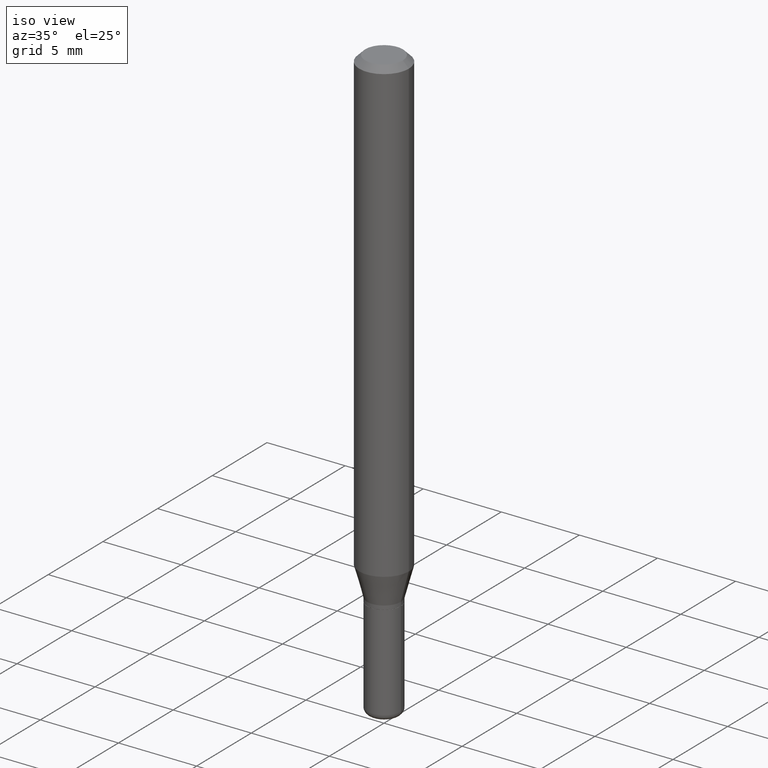
[diagram: clean part render]
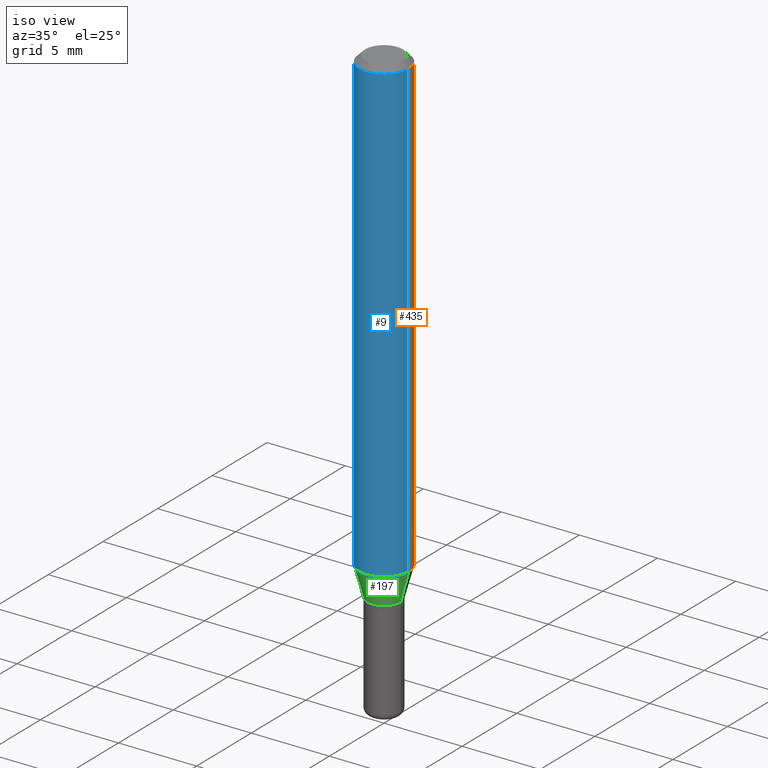
[diagram: same view with three faces highlighted in distinct colors, each labeled with its STEP entity id]
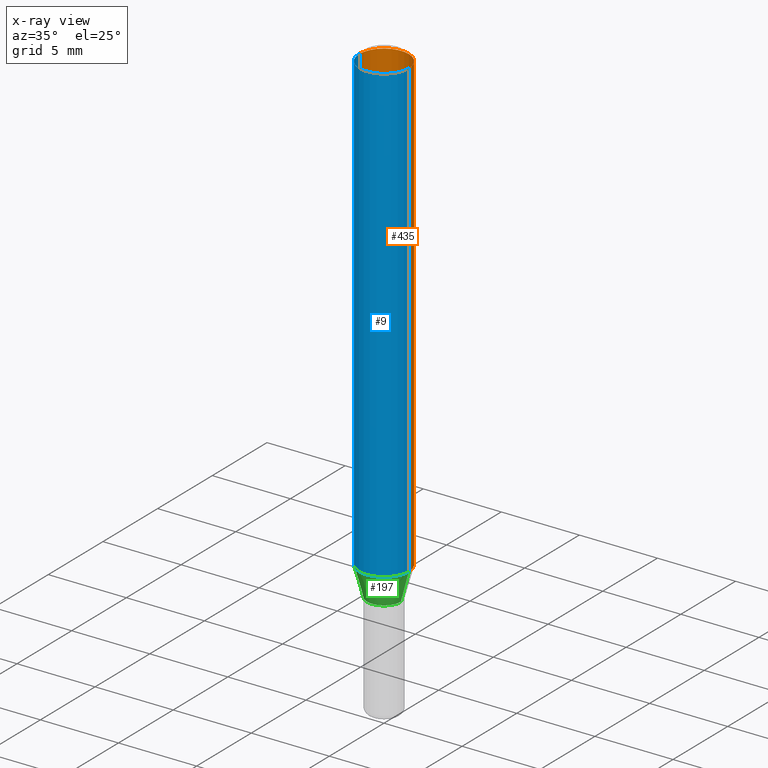
[diagram: x-ray of the same camera — body ghosted, the three highlighted faces saturated]
A machine part, iso view with three faces highlighted in distinct colors.
The next image is the same camera in x-ray (body ghosted, the three faces saturated) — at least one of them is partly hidden behind the body in this view.
Their STEP definitions:

[orange] entity #435 — the highlighted cylindrical surface (edge-blend (fillet) strip) has radius 1.5875 mm, axis along (-0, 0, 1).
#2 = ORIENTED_EDGE ( 'NONE', *, *, #174, .F. ) ;
#18 = EDGE_CURVE ( 'NONE', #262, #90, #392, .T. ) ;
#38 = EDGE_CURVE ( 'NONE', #90, #165, #416, .T. ) ;
#52 = EDGE_LOOP ( 'NONE', ( #120, #402, #2, #204 ) ) ;
#53 = CYLINDRICAL_SURFACE ( 'NONE', #233, 0.06250000000000000000 ) ;
#65 = CARTESIAN_POINT ( 'NONE',  ( 0.06250000000000000000, -4.888073874380378612E-16, -0.01499999999999970281 ) ) ;
#90 = VERTEX_POINT ( 'NONE', #504 ) ;
#91 = VECTOR ( 'NONE', #510, 39.37007874015748143 ) ;
#93 = DIRECTION ( 'NONE',  ( -2.445468806185136597E-29, 3.491481338843145583E-15, 1.000000000000000000 ) ) ;
#110 = CARTESIAN_POINT ( 'NONE',  ( 3.668203209277632395E-31, -5.237222008264614861E-17, -0.01499999999999970281 ) ) ;
#120 = ORIENTED_EDGE ( 'NONE', *, *, #18, .T. ) ;
#149 = DIRECTION ( 'NONE',  ( 1.000000000000000000, -6.982962677686266711E-15, 4.876176775795935793E-29 ) ) ;
#165 = VERTEX_POINT ( 'NONE', #318 ) ;
#174 = EDGE_CURVE ( 'NONE', #203, #165, #398, .T. ) ;
#177 = VECTOR ( 'NONE', #267, 39.37007874015748143 ) ;
#184 = DIRECTION ( 'NONE',  ( 1.000000000000000000, -6.982962677686266711E-15, 0.000000000000000000 ) ) ;
#194 = CARTESIAN_POINT ( 'NONE',  ( 0.06250000000000000000, -4.364351673553916694E-16, 3.047610484872459871E-30 ) ) ;
#203 = VERTEX_POINT ( 'NONE', #65 ) ;
#204 = ORIENTED_EDGE ( 'NONE', *, *, #431, .F. ) ;
#216 = DIRECTION ( 'NONE',  ( 1.000000000000000000, -6.982962677686262766E-15, 0.000000000000000000 ) ) ;
#233 = AXIS2_PLACEMENT_3D ( 'NONE', #456, #359, #149 ) ;
#262 = VERTEX_POINT ( 'NONE', #295 ) ;
#267 = DIRECTION ( 'NONE',  ( -2.445468806185136877E-29, 3.491481338843145188E-15, 1.000000000000000000 ) ) ;
#269 = DIRECTION ( 'NONE',  ( -2.445468806185136597E-29, 3.491481338843145583E-15, 1.000000000000000000 ) ) ;
#276 = LINE ( 'NONE', #194, #91 ) ;
#291 = CARTESIAN_POINT ( 'NONE',  ( 2.837621698978489098E-29, -4.051371738466460595E-15, -1.160358983848622572 ) ) ;
#295 = CARTESIAN_POINT ( 'NONE',  ( 0.06250000000000000000, -4.487806905821851475E-15, -1.160358983848622572 ) ) ;
#313 = AXIS2_PLACEMENT_3D ( 'NONE', #110, #269, #184 ) ;
#315 = CARTESIAN_POINT ( 'NONE',  ( -0.06250000000000000000, 4.440892098500626162E-16, -3.074334431409316114E-30 ) ) ;
#318 = CARTESIAN_POINT ( 'NONE',  ( -0.06250000000000000000, -1.607782769424490432E-15, -0.01499999999999970281 ) ) ;
#325 = FACE_OUTER_BOUND ( 'NONE', #52, .T. ) ;
#354 = AXIS2_PLACEMENT_3D ( 'NONE', #291, #93, #216 ) ;
#359 = DIRECTION ( 'NONE',  ( -2.445468806185136597E-29, 3.491481338843145583E-15, 1.000000000000000000 ) ) ;
#392 = CIRCLE ( 'NONE', #354, 0.06250000000000000000 ) ;
#398 = CIRCLE ( 'NONE', #313, 0.06250000000000000000 ) ;
#402 = ORIENTED_EDGE ( 'NONE', *, *, #38, .T. ) ;
#416 = LINE ( 'NONE', #315, #177 ) ;
#431 = EDGE_CURVE ( 'NONE', #262, #203, #276, .T. ) ;
#435 = ADVANCED_FACE ( 'NONE', ( #325 ), #53, .T. ) ;
#456 = CARTESIAN_POINT ( 'NONE',  ( 0.000000000000000000, 0.000000000000000000, 0.000000000000000000 ) ) ;
#504 = CARTESIAN_POINT ( 'NONE',  ( -0.06250000000000000000, -3.607282528616397979E-15, -1.160358983848622572 ) ) ;
#510 = DIRECTION ( 'NONE',  ( -2.445468806185136877E-29, 3.491481338843145188E-15, 1.000000000000000000 ) ) ;

[blue] entity #9 — the highlighted cylindrical surface (edge-blend (fillet) strip) has radius 1.5875 mm, axis along (-0, 0, 1).
#6 = ORIENTED_EDGE ( 'NONE', *, *, #38, .F. ) ;
#9 = ADVANCED_FACE ( 'NONE', ( #307 ), #225, .T. ) ;
#31 = AXIS2_PLACEMENT_3D ( 'NONE', #147, #158, #311 ) ;
#38 = EDGE_CURVE ( 'NONE', #90, #165, #416, .T. ) ;
#65 = CARTESIAN_POINT ( 'NONE',  ( 0.06250000000000000000, -4.888073874380378612E-16, -0.01499999999999970281 ) ) ;
#90 = VERTEX_POINT ( 'NONE', #504 ) ;
#91 = VECTOR ( 'NONE', #510, 39.37007874015748143 ) ;
#111 = CIRCLE ( 'NONE', #31, 0.06250000000000000000 ) ;
#122 = DIRECTION ( 'NONE',  ( 1.000000000000000000, -6.982962677686266711E-15, 0.000000000000000000 ) ) ;
#134 = AXIS2_PLACEMENT_3D ( 'NONE', #462, #331, #485 ) ;
#147 = CARTESIAN_POINT ( 'NONE',  ( 2.837621698978489098E-29, -4.051371738466460595E-15, -1.160358983848622572 ) ) ;
#156 = EDGE_CURVE ( 'NONE', #90, #262, #111, .T. ) ;
#158 = DIRECTION ( 'NONE',  ( -2.445468806185136597E-29, 3.491481338843145583E-15, 1.000000000000000000 ) ) ;
#165 = VERTEX_POINT ( 'NONE', #318 ) ;
#177 = VECTOR ( 'NONE', #267, 39.37007874015748143 ) ;
#194 = CARTESIAN_POINT ( 'NONE',  ( 0.06250000000000000000, -4.364351673553916694E-16, 3.047610484872459871E-30 ) ) ;
#203 = VERTEX_POINT ( 'NONE', #65 ) ;
#214 = DIRECTION ( 'NONE',  ( -2.445468806185136597E-29, 3.491481338843145583E-15, 1.000000000000000000 ) ) ;
#225 = CYLINDRICAL_SURFACE ( 'NONE', #134, 0.06250000000000000000 ) ;
#262 = VERTEX_POINT ( 'NONE', #295 ) ;
#267 = DIRECTION ( 'NONE',  ( -2.445468806185136877E-29, 3.491481338843145188E-15, 1.000000000000000000 ) ) ;
#276 = LINE ( 'NONE', #194, #91 ) ;
#287 = ORIENTED_EDGE ( 'NONE', *, *, #156, .T. ) ;
#295 = CARTESIAN_POINT ( 'NONE',  ( 0.06250000000000000000, -4.487806905821851475E-15, -1.160358983848622572 ) ) ;
#307 = FACE_OUTER_BOUND ( 'NONE', #497, .T. ) ;
#311 = DIRECTION ( 'NONE',  ( 1.000000000000000000, -6.982962677686262766E-15, 0.000000000000000000 ) ) ;
#315 = CARTESIAN_POINT ( 'NONE',  ( -0.06250000000000000000, 4.440892098500626162E-16, -3.074334431409316114E-30 ) ) ;
#318 = CARTESIAN_POINT ( 'NONE',  ( -0.06250000000000000000, -1.607782769424490432E-15, -0.01499999999999970281 ) ) ;
#331 = DIRECTION ( 'NONE',  ( -2.445468806185136597E-29, 3.491481338843145583E-15, 1.000000000000000000 ) ) ;
#332 = CARTESIAN_POINT ( 'NONE',  ( 3.668203209277632395E-31, -5.237222008264614861E-17, -0.01499999999999970281 ) ) ;
#390 = ORIENTED_EDGE ( 'NONE', *, *, #431, .T. ) ;
#393 = AXIS2_PLACEMENT_3D ( 'NONE', #332, #214, #122 ) ;
#416 = LINE ( 'NONE', #315, #177 ) ;
#423 = ORIENTED_EDGE ( 'NONE', *, *, #424, .F. ) ;
#424 = EDGE_CURVE ( 'NONE', #165, #203, #489, .T. ) ;
#431 = EDGE_CURVE ( 'NONE', #262, #203, #276, .T. ) ;
#462 = CARTESIAN_POINT ( 'NONE',  ( 0.000000000000000000, 0.000000000000000000, 0.000000000000000000 ) ) ;
#485 = DIRECTION ( 'NONE',  ( 1.000000000000000000, -6.982962677686266711E-15, 4.876176775795935793E-29 ) ) ;
#489 = CIRCLE ( 'NONE', #393, 0.06250000000000000000 ) ;
#497 = EDGE_LOOP ( 'NONE', ( #6, #287, #390, #423 ) ) ;
#504 = CARTESIAN_POINT ( 'NONE',  ( -0.06250000000000000000, -3.607282528616397979E-15, -1.160358983848622572 ) ) ;
#510 = DIRECTION ( 'NONE',  ( -2.445468806185136877E-29, 3.491481338843145188E-15, 1.000000000000000000 ) ) ;

[green] entity #197 — the highlighted conical surface has half-angle 15 deg.
#11 = ORIENTED_EDGE ( 'NONE', *, *, #407, .T. ) ;
#13 = CARTESIAN_POINT ( 'NONE',  ( 0.04249999999999997530, -4.608755367272951648E-15, -1.235000000000000098 ) ) ;
#22 = ORIENTED_EDGE ( 'NONE', *, *, #156, .F. ) ;
#26 = VERTEX_POINT ( 'NONE', #13 ) ;
#31 = AXIS2_PLACEMENT_3D ( 'NONE', #147, #158, #311 ) ;
#32 = AXIS2_PLACEMENT_3D ( 'NONE', #215, #454, #305 ) ;
#34 = DIRECTION ( 'NONE',  ( 0.2588190451025209060, 1.565188264969625123E-15, 0.9659258262890682012 ) ) ;
#71 = DIRECTION ( 'NONE',  ( -2.445468806185136597E-29, 3.491481338843145583E-15, 1.000000000000000000 ) ) ;
#77 = AXIS2_PLACEMENT_3D ( 'NONE', #437, #71, #501 ) ;
#84 = DIRECTION ( 'NONE',  ( -0.2588190451025209060, 5.211531920934547097E-15, 0.9659258262890682012 ) ) ;
#90 = VERTEX_POINT ( 'NONE', #504 ) ;
#111 = CIRCLE ( 'NONE', #31, 0.06250000000000000000 ) ;
#117 = CONICAL_SURFACE ( 'NONE', #77, 0.04249999999999997530, 0.2617993877991495744 ) ;
#130 = CARTESIAN_POINT ( 'NONE',  ( 0.04249999999999997530, -4.608755367272951648E-15, -1.235000000000000098 ) ) ;
#143 = EDGE_LOOP ( 'NONE', ( #213, #365, #11, #22 ) ) ;
#147 = CARTESIAN_POINT ( 'NONE',  ( 2.837621698978489098E-29, -4.051371738466460595E-15, -1.160358983848622572 ) ) ;
#156 = EDGE_CURVE ( 'NONE', #90, #262, #111, .T. ) ;
#158 = DIRECTION ( 'NONE',  ( -2.445468806185136597E-29, 3.491481338843145583E-15, 1.000000000000000000 ) ) ;
#197 = ADVANCED_FACE ( 'NONE', ( #234 ), #117, .T. ) ;
#202 = CARTESIAN_POINT ( 'NONE',  ( -0.04249999999999997530, -4.009998790773243334E-15, -1.235000000000000098 ) ) ;
#213 = ORIENTED_EDGE ( 'NONE', *, *, #236, .F. ) ;
#215 = CARTESIAN_POINT ( 'NONE',  ( 3.020153975638643988E-29, -4.311979453471284998E-15, -1.235000000000000098 ) ) ;
#234 = FACE_OUTER_BOUND ( 'NONE', #143, .T. ) ;
#236 = EDGE_CURVE ( 'NONE', #373, #90, #362, .T. ) ;
#262 = VERTEX_POINT ( 'NONE', #295 ) ;
#266 = EDGE_CURVE ( 'NONE', #373, #26, #280, .T. ) ;
#280 = CIRCLE ( 'NONE', #32, 0.04249999999999997530 ) ;
#293 = VECTOR ( 'NONE', #84, 39.37007874015748143 ) ;
#295 = CARTESIAN_POINT ( 'NONE',  ( 0.06250000000000000000, -4.487806905821851475E-15, -1.160358983848622572 ) ) ;
#305 = DIRECTION ( 'NONE',  ( 1.000000000000000000, -6.982962677686269077E-15, 0.000000000000000000 ) ) ;
#308 = VECTOR ( 'NONE', #34, 39.37007874015748143 ) ;
#311 = DIRECTION ( 'NONE',  ( 1.000000000000000000, -6.982962677686262766E-15, 0.000000000000000000 ) ) ;
#336 = LINE ( 'NONE', #130, #308 ) ;
#362 = LINE ( 'NONE', #202, #293 ) ;
#365 = ORIENTED_EDGE ( 'NONE', *, *, #266, .T. ) ;
#373 = VERTEX_POINT ( 'NONE', #405 ) ;
#405 = CARTESIAN_POINT ( 'NONE',  ( -0.04249999999999997530, -3.808640659694820656E-15, -1.235000000000000098 ) ) ;
#407 = EDGE_CURVE ( 'NONE', #26, #262, #336, .T. ) ;
#437 = CARTESIAN_POINT ( 'NONE',  ( 3.020153975638643988E-29, -4.311979453471284998E-15, -1.235000000000000098 ) ) ;
#454 = DIRECTION ( 'NONE',  ( -2.445468806185136597E-29, 3.491481338843145583E-15, 1.000000000000000000 ) ) ;
#501 = DIRECTION ( 'NONE',  ( 1.000000000000000000, -6.982962677686269077E-15, 0.000000000000000000 ) ) ;
#504 = CARTESIAN_POINT ( 'NONE',  ( -0.06250000000000000000, -3.607282528616397979E-15, -1.160358983848622572 ) ) ;